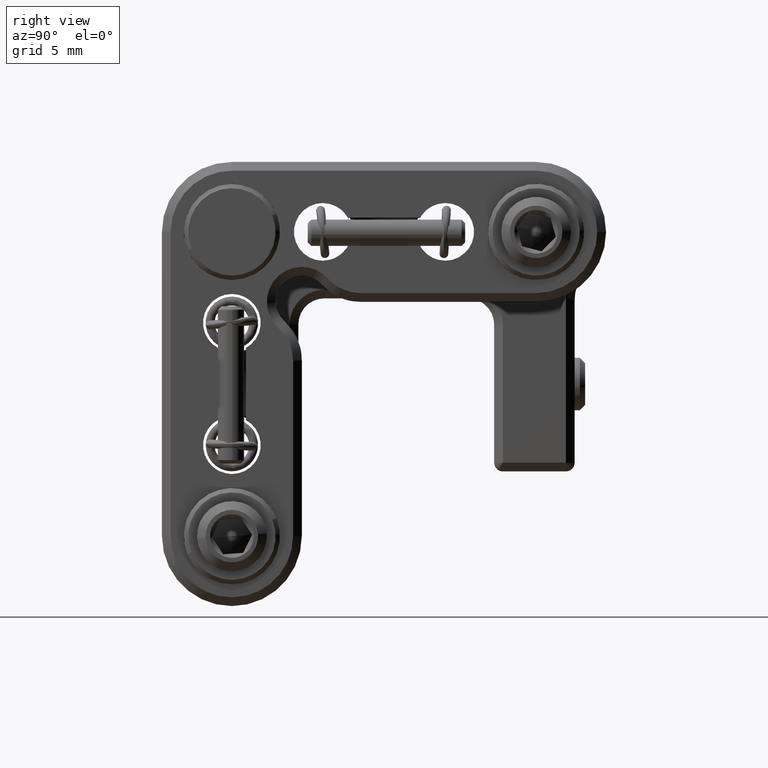
[diagram: clean part render]
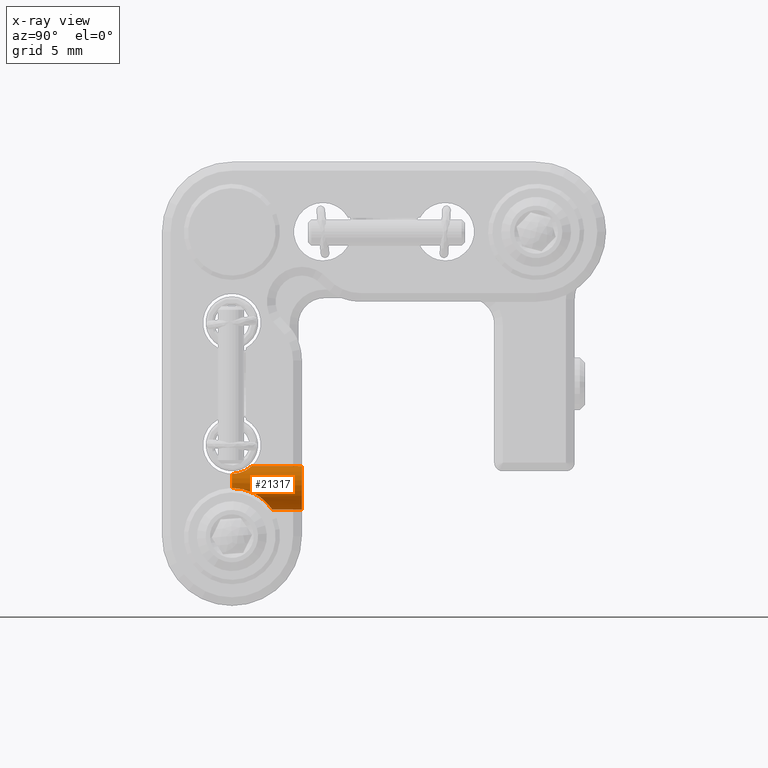
[diagram: x-ray — body ghosted, one internal face saturated and labeled with its STEP entity id]
A machine part, right view, then the same camera in x-ray: the body is ghosted and one INTERNAL B-rep face — a face not visible from any outside direction — is saturated and labeled: STEP entity #21317.
In plain terms, the highlighted cylindrical surface (edge-blend (fillet) strip) has radius 1.25 mm, axis along (-0, 1, -0).
Its self-contained STEP definition (entity closure, byte-faithful):
#829 = ORIENTED_EDGE ( 'NONE', *, *, #17731, .F. ) ;
#872 = DIRECTION ( 'NONE',  ( -1.378096284421531633E-22, 1.000000000000000000, -6.938893903907227145E-17 ) ) ;
#965 = CARTESIAN_POINT ( 'NONE',  ( 24.07916071885741616, 5.094406693528187979, -17.46152970137181981 ) ) ;
#1043 = CARTESIAN_POINT ( 'NONE',  ( 23.91292545548195037, 5.788541217798816696, -17.90726293093768007 ) ) ;
#1639 = B_SPLINE_CURVE_WITH_KNOTS ( 'NONE', 3,
 ( #2683, #22108, #20132, #965, #22344, #17081, #1043, #10053, #6555, #3003, #21093, #13484, #11780, #2907 ),
 .UNSPECIFIED., .F., .F.,
 ( 4, 2, 2, 2, 2, 2, 4 ),
 ( 8.673617379884035472E-19, 0.0008358555976014920945, 0.001671711195202983322, 0.002089638994003724382, 0.002507566792804466309, 0.002925494591605207802, 0.003343422390405949296 ),
 .UNSPECIFIED. ) ;
#2683 = CARTESIAN_POINT ( 'NONE',  ( 24.09426557823278614, 4.000000000000005329, -17.24999999999998579 ) ) ;
#2890 = FACE_OUTER_BOUND ( 'NONE', #11397, .T. ) ;
#2907 = CARTESIAN_POINT ( 'NONE',  ( 22.84426557823278259, 6.304886114323227986, -18.49999999999999289 ) ) ;
#2950 = DIRECTION ( 'NONE',  ( -1.378096284421531633E-22, 1.000000000000000000, -6.938893903907227145E-17 ) ) ;
#3003 = CARTESIAN_POINT ( 'NONE',  ( 23.50347215357239250, 6.179129458855687318, -18.31955741522072501 ) ) ;
#3550 = AXIS2_PLACEMENT_3D ( 'NONE', #19249, #5314, #15900 ) ;
#3901 = EDGE_CURVE ( 'NONE', #13686, #15421, #14161, .T. ) ;
#3959 = ORIENTED_EDGE ( 'NONE', *, *, #13277, .F. ) ;
#4064 = CARTESIAN_POINT ( 'NONE',  ( 22.84426557823278259, 8.000000000000007105, -17.24999999999999289 ) ) ;
#4247 = CARTESIAN_POINT ( 'NONE',  ( 23.71889691458947880, 4.568342833831304795, -16.35550711233934607 ) ) ;
#4889 = ORIENTED_EDGE ( 'NONE', *, *, #18742, .T. ) ;
#5314 = DIRECTION ( 'NONE',  ( -1.378096284421531633E-22, 1.000000000000000000, -6.938893903907227145E-17 ) ) ;
#5472 = VECTOR ( 'NONE', #872, 1000.000000000000000 ) ;
#5900 = CARTESIAN_POINT ( 'NONE',  ( 23.50090423772092407, 4.910344320884640901, -16.18158090148115491 ) ) ;
#5963 = CARTESIAN_POINT ( 'NONE',  ( 23.39209902391196394, 4.994785646316568517, -16.11833661407275287 ) ) ;
#6473 = CARTESIAN_POINT ( 'NONE',  ( 23.80473421384773047, 4.000000000000005329, -16.45000000000002061 ) ) ;
#6555 = CARTESIAN_POINT ( 'NONE',  ( 23.70441407010991597, 6.051371574992775670, -18.16577887360765331 ) ) ;
#6597 = AXIS2_PLACEMENT_3D ( 'NONE', #4064, #11168, #11660 ) ;
#7004 = VERTEX_POINT ( 'NONE', #13206 ) ;
#7448 = VERTEX_POINT ( 'NONE', #9147 ) ;
#7718 = CARTESIAN_POINT ( 'NONE',  ( 22.84426557823278259, 5.132475165290618868, -15.99999999999999289 ) ) ;
#8209 = CARTESIAN_POINT ( 'NONE',  ( 22.84426557823278259, 8.000000000000007105, -17.24999999999999289 ) ) ;
#8970 = CARTESIAN_POINT ( 'NONE',  ( 22.84426557823278259, 8.000000000000007105, -18.49999999999999645 ) ) ;
#9147 = CARTESIAN_POINT ( 'NONE',  ( 24.09426557823278614, 4.000000000000005329, -17.24999999999998579 ) ) ;
#9492 = CARTESIAN_POINT ( 'NONE',  ( 22.99152973822925361, 5.132475165290617092, -15.99999999999999289 ) ) ;
#9515 = VERTEX_POINT ( 'NONE', #15813 ) ;
#9720 = CARTESIAN_POINT ( 'NONE',  ( 22.84426557823278259, 8.000000000000007105, -15.99999999999999289 ) ) ;
#9869 = EDGE_CURVE ( 'NONE', #13686, #9515, #10138, .T. ) ;
#10053 = CARTESIAN_POINT ( 'NONE',  ( 23.78518492695779685, 5.972704678047685789, -18.07987907120368476 ) ) ;
#10138 = LINE ( 'NONE', #9720, #5472 ) ;
#10743 = VERTEX_POINT ( 'NONE', #12731 ) ;
#11168 = DIRECTION ( 'NONE',  ( -1.378096284421531633E-22, 1.000000000000000000, -6.938893903907227145E-17 ) ) ;
#11242 = CIRCLE ( 'NONE', #3550, 1.250000000000001110 ) ;
#11397 = EDGE_LOOP ( 'NONE', ( #12618, #3959, #829, #11722, #22564, #4889 ) ) ;
#11660 = DIRECTION ( 'NONE',  ( 0.0000000000000000000, 0.0000000000000000000, 1.000000000000000000 ) ) ;
#11722 = ORIENTED_EDGE ( 'NONE', *, *, #3901, .F. ) ;
#11780 = CARTESIAN_POINT ( 'NONE',  ( 22.98619966957009453, 6.304886114324530944, -18.50000000000004974 ) ) ;
#12334 = DIRECTION ( 'NONE',  ( -1.378096284421531633E-22, 1.000000000000000000, -6.938893903907227145E-17 ) ) ;
#12618 = ORIENTED_EDGE ( 'NONE', *, *, #13540, .F. ) ;
#12731 = CARTESIAN_POINT ( 'NONE',  ( 22.84426557823278259, 8.000000000000007105, -18.49999999999999645 ) ) ;
#13160 = CARTESIAN_POINT ( 'NONE',  ( 23.13742686396904347, 5.105074070582278800, -16.02736351935724457 ) ) ;
#13206 = CARTESIAN_POINT ( 'NONE',  ( 22.84426557823278259, 6.304886114323227986, -18.49999999999999289 ) ) ;
#13277 = EDGE_CURVE ( 'NONE', #7448, #7004, #1639, .T. ) ;
#13484 = CARTESIAN_POINT ( 'NONE',  ( 23.12591130180237897, 6.289553126916633374, -18.47568609241715976 ) ) ;
#13540 = EDGE_CURVE ( 'NONE', #7004, #10743, #17889, .T. ) ;
#13686 = VERTEX_POINT ( 'NONE', #16326 ) ;
#14161 = B_SPLINE_CURVE_WITH_KNOTS ( 'NONE', 3,
 ( #7718, #9492, #13160, #5963, #5900, #21718, #4247, #18168, #16542, #6473 ),
 .UNSPECIFIED., .F., .F.,
 ( 4, 2, 2, 2, 4 ),
 ( 0.001750346905492248520, 0.002186772106654586226, 0.002623197307816924149, 0.003059622508979262072, 0.003496047710141599995 ),
 .UNSPECIFIED. ) ;
#15421 = VERTEX_POINT ( 'NONE', #22811 ) ;
#15813 = CARTESIAN_POINT ( 'NONE',  ( 22.84426557823278259, 8.000000000000007105, -15.99999999999999289 ) ) ;
#15900 = DIRECTION ( 'NONE',  ( 0.0000000000000000000, 0.0000000000000000000, 1.000000000000000000 ) ) ;
#16326 = CARTESIAN_POINT ( 'NONE',  ( 22.84426557823278259, 5.132475165290618868, -15.99999999999999289 ) ) ;
#16542 = CARTESIAN_POINT ( 'NONE',  ( 23.80473421384773047, 4.147570007527663805, -16.45000000000001705 ) ) ;
#17081 = CARTESIAN_POINT ( 'NONE',  ( 23.95842252534226091, 5.685989954385717304, -17.82312373418177742 ) ) ;
#17731 = EDGE_CURVE ( 'NONE', #15421, #7448, #11242, .T. ) ;
#17889 = LINE ( 'NONE', #8970, #20899 ) ;
#18168 = CARTESIAN_POINT ( 'NONE',  ( 23.78881421138376240, 4.294550505298842857, -16.42967970875687556 ) ) ;
#18742 = EDGE_CURVE ( 'NONE', #9515, #10743, #19081, .T. ) ;
#19081 = CIRCLE ( 'NONE', #22300, 1.250000000000001110 ) ;
#19249 = CARTESIAN_POINT ( 'NONE',  ( 22.84426557823278259, 4.000000000000005329, -17.24999999999999289 ) ) ;
#20132 = CARTESIAN_POINT ( 'NONE',  ( 24.09642295469729589, 4.558044349016687313, -17.29257613728709231 ) ) ;
#20488 = DIRECTION ( 'NONE',  ( 0.0000000000000000000, 0.0000000000000000000, 1.000000000000000000 ) ) ;
#20899 = VECTOR ( 'NONE', #12334, 1000.000000000000000 ) ;
#21083 = CYLINDRICAL_SURFACE ( 'NONE', #6597, 1.250000000000001110 ) ;
#21093 = CARTESIAN_POINT ( 'NONE',  ( 23.38706399857188245, 6.226121846661804682, -18.38446048217964091 ) ) ;
#21317 = ADVANCED_FACE ( 'NONE', ( #2890 ), #21083, .F. ) ;
#21718 = CARTESIAN_POINT ( 'NONE',  ( 23.66386801947739471, 4.696445566972553998, -16.30081849074053579 ) ) ;
#22108 = CARTESIAN_POINT ( 'NONE',  ( 24.09426557823278969, 4.282628643542485847, -17.24999999999998934 ) ) ;
#22300 = AXIS2_PLACEMENT_3D ( 'NONE', #8209, #2950, #20488 ) ;
#22344 = CARTESIAN_POINT ( 'NONE',  ( 24.05995114672535706, 5.348157110461564834, -17.58745320928330358 ) ) ;
#22564 = ORIENTED_EDGE ( 'NONE', *, *, #9869, .T. ) ;
#22811 = CARTESIAN_POINT ( 'NONE',  ( 23.80473421384773047, 4.000000000000005329, -16.45000000000002061 ) ) ;